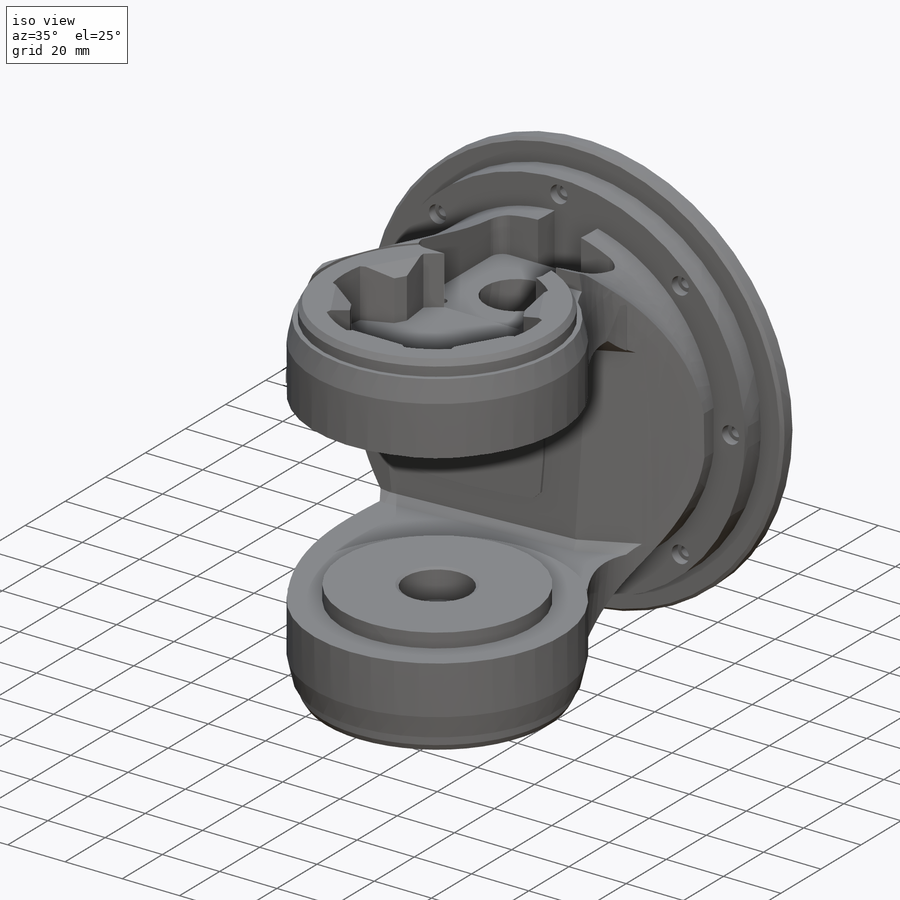
[diagram: iso view]
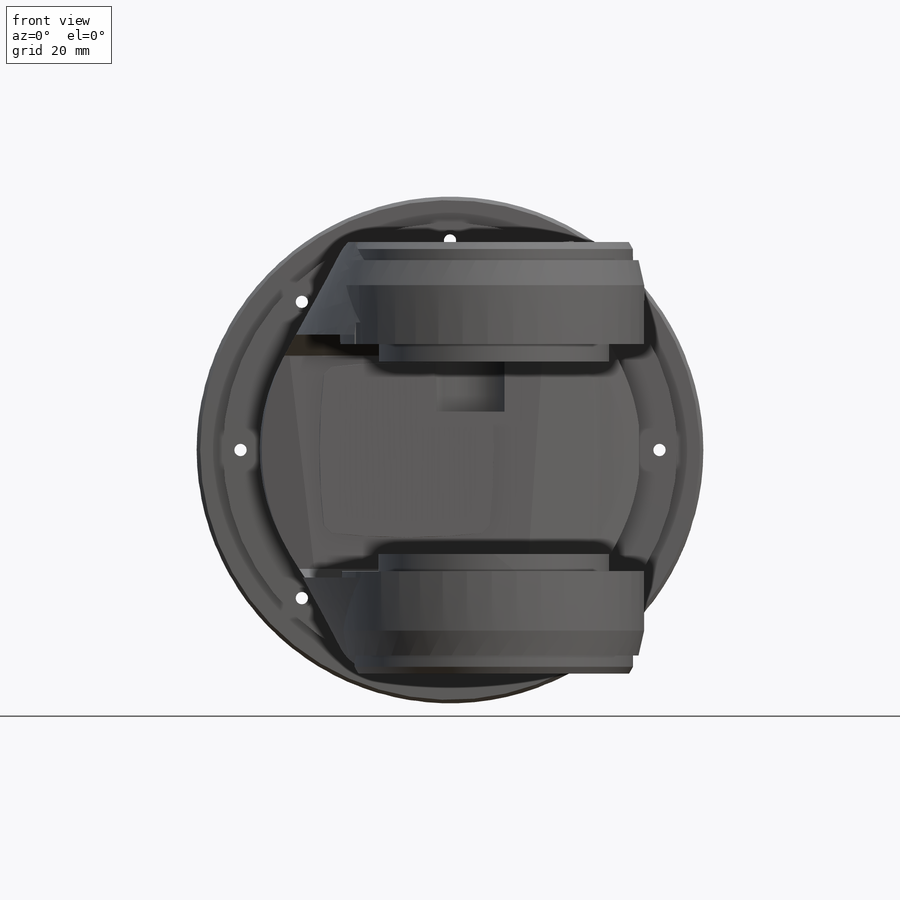
[diagram: front view]
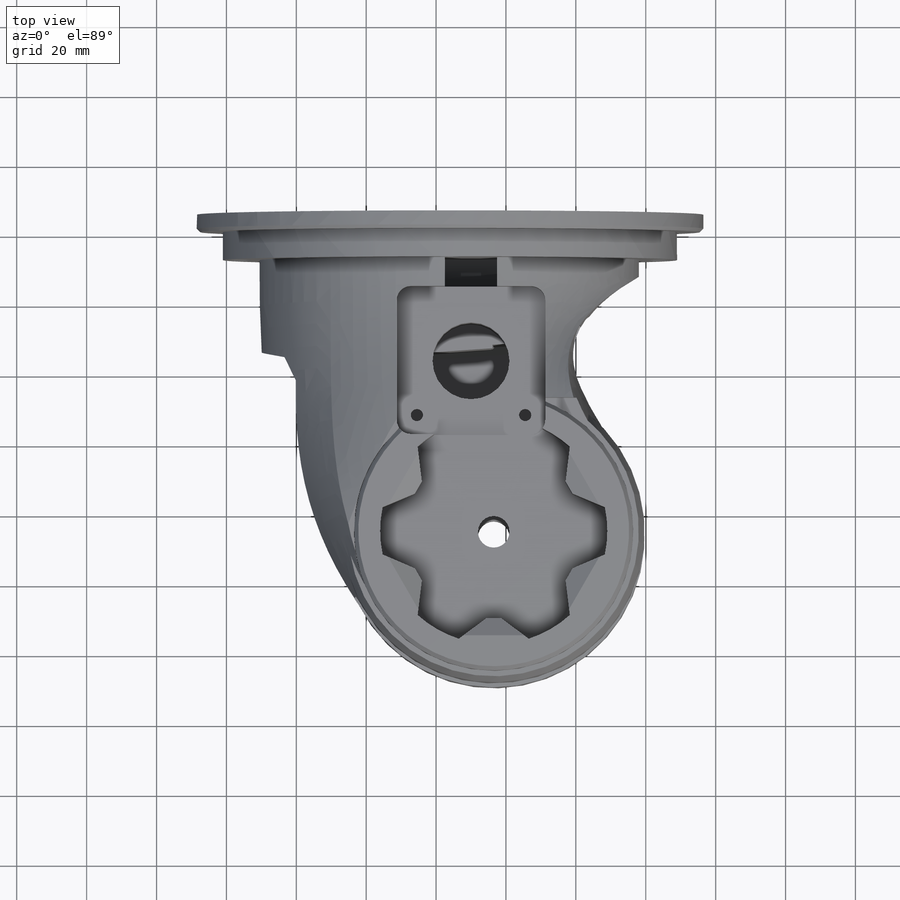
[diagram: top view]
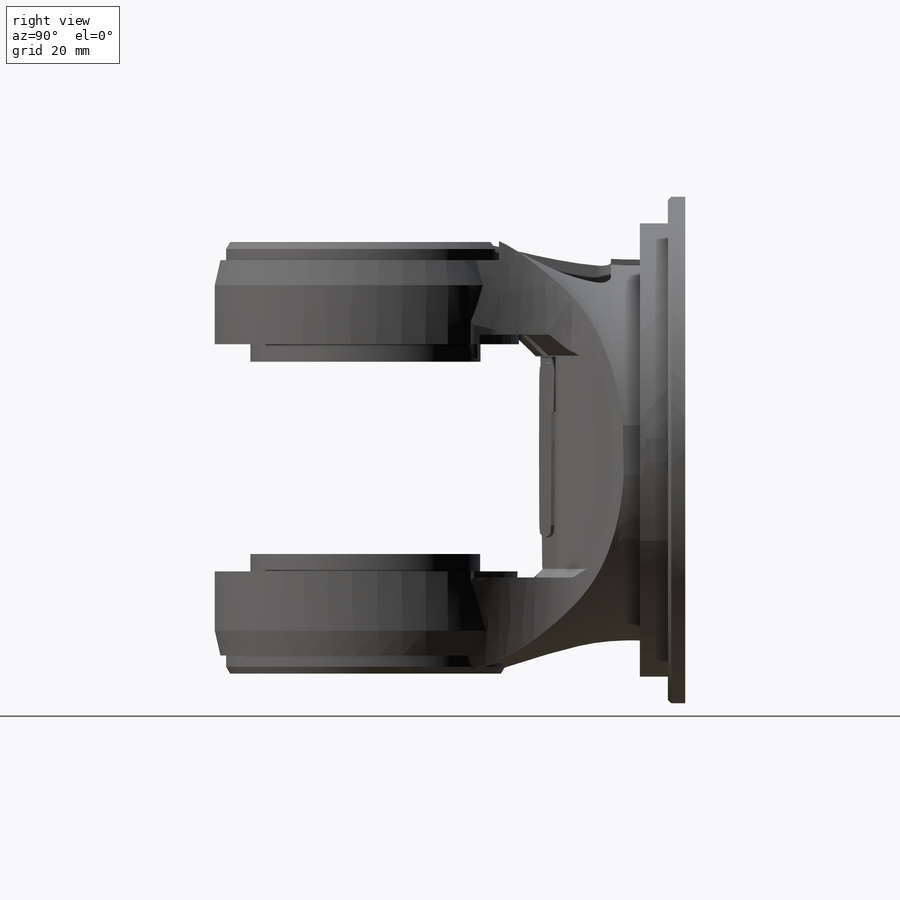
[diagram: right view]
SOLIDWORKS PART (.sldprt)
format: sldprt  version: not decoded by parser v0  size: 4,474,368 bytes
history: native  units: mm
features: sketch x34, cut_extrude x28, plane x10, chamfer x6, extrude x4, fillet x3, mirror x2, delete_body x2, material x1, cut_revolve x1, move_body x1, revolve x1 (+10 scaffold rows collapsed)
feature tree (103):
  scaffold x10  (default folders/planes/origin — collapsed)
  material  "Materiał <nieokreślony>"
  plane  "Płaszczyzna przednia"
  plane  "Płaszczyzna górna"
  plane  "Płaszczyzna prawa"
  sketch  "Szkic1"
  cut_extrude  "Wytnij-wyciągnięcie1"  Depth=10mm
  sketch  "Szkic2"  dims[c1.D4=~8.577769mm c1.D5=~0.461453mm c1.D10=~4.634352mm c1.D1=2.7mm c1.D2=3.2mm c2.D4=~3.31882mm c2.D6=~0.313752mm c2.D7=2.5mm c2.D8=~0.416444mm c2.D9=2.65mm c2.D3=70.0]
  extrude  "Dodanie-wyciągnięcie1"  Depth=5mm
  sketch  "Szkic3"  dims[D1=130.0mm]
  extrude  "Dodanie-wyciągnięcie2"  [1 undecoded]
  sketch  "Szkic4"
  cut_extrude  "Wytnij-wyciągnięcie2"  Depth=10mm
  plane  "Płaszczyzna4"
  sketch  "Szkic5"  dims[c1.D1=8.5mm c1.D2=1.7mm c1.D3=~6.697462mm c2.D3=90.0deg c3.D3=51.0mm c3.D2=1.7mm]
  cut_revolve  "Wycięcie-obrót1"  Angle=360deg
  sketch  "Szkic7"
  cut_extrude  "Wytnij-wyciągnięcie4"  Depth=10mm
  plane  "Płaszczyzna5"  Offset=70mm
  plane  "Płaszczyzna7"
  sketch  "Szkic10"  dims[D2=4.0mm D1=42.5mm D3=21.3mm D4=6.0mm]
  cut_extrude  "Wytnij-wyciągnięcie6"  Depth=28mm
  sketch  "Szkic11"  dims[D1=22.2mm]
  cut_extrude  "Wytnij-wyciągnięcie7"  [1 undecoded]
  sketch  "Szkic13"
  cut_extrude  "Wytnij-wyciągnięcie8"  Depth=10mm
  chamfer  "Sfazowanie1"  Distance=1mm Angle=30deg
  sketch  "Szkic16"
  cut_extrude  "Wytnij-wyciągnięcie11"  Depth=15mm
  sketch  "Szkic18"  dims[D1=3.5mm D2=8.0]
  cut_extrude  "Wytnij-wyciągnięcie12"  Depth=15mm
  sketch  "Szkic19"  dims[D1=6.0mm D2=8.0]
  cut_extrude  "Wytnij-wyciągnięcie13"  Depth=3mm
  sketch  "Szkic20"  dims[D1=5.6mm D2=8.0]
  cut_extrude  "Wytnij-wyciągnięcie14"  Depth=3.5mm
  plane  "Płaszczyzna6"  Offset=5mm
  sketch  "Szkic21"  dims[D1=7.5mm]
  extrude  "Dodanie-wyciągnięcie3"  [1 undecoded]
  chamfer  "Sfazowanie2"  Distance=1mm Angle=45deg
  sketch  "Szkic22"
  cut_extrude  "Wytnij-wyciągnięcie15"  Depth=10mm
  sketch  "Szkic23"  dims[D1=9.0mm]
  cut_extrude  "Wytnij-wyciągnięcie16"  Depth=4mm
  chamfer  "Sfazowanie3"  Distance=1mm Angle=45deg
  sketch  "Szkic24"  dims[D2=3.5mm D1=31.0mm D3=31.0mm]
  cut_extrude  "Wytnij-wyciągnięcie17"  Depth=30mm
  sketch  "Szkic25"  dims[D1=6.0mm]
  cut_extrude  "Wytnij-wyciągnięcie18"  Depth=4mm
  sketch  "Szkic26"  dims[D1=0.8mm]
  cut_extrude  "Wytnij-wyciągnięcie19"  [1 undecoded]
  sketch  "Szkic27"  dims[D1=22.0mm]
  cut_extrude  "Wytnij-wyciągnięcie20"  Depth=30mm
  sketch  "Szkic28"  dims[D1=15.0mm]
  cut_extrude  "Wytnij-wyciągnięcie21"  Depth=70mm
  sketch  "Szkic29"
  cut_extrude  "Wytnij-wyciągnięcie24"  [1 undecoded]
  chamfer  "Sfazowanie4"  Distance=10mm Angle=30deg
  fillet  "Zaokrąglenie1"  Radius=10mm
  fillet  "Zaokrąglenie2"  Radius=10mm
  fillet  "Zaokrąglenie3"  Radius=10mm
  sketch  "Szkic30"  dims[D1=3.5mm D2=31.0mm D3=31.0mm]
  cut_extrude  "Wytnij-wyciągnięcie25"  Depth=30mm
  sketch  "Szkic31"  dims[D1=6.0mm]
  cut_extrude  "Wytnij-wyciągnięcie26"  Depth=4mm
  sketch  "Szkic8"
  cut_extrude  "Wytnij-wyciągnięcie5"  [1 undecoded]
  move_body  "Obiekt-Przenieś/Kopiuj1"
  plane  "Płaszczyzna8"  Offset=63mm
  sketch  "Szkic32"
  cut_extrude  "Wytnij-wyciągnięcie27"  Depth=10mm
  sketch  "Szkic33"  dims[D1=80.0mm]
  cut_extrude  "Wytnij-wyciągnięcie28"  Depth=17mm
  sketch  "Szkic36"
  cut_extrude  "Wytnij-wyciągnięcie32"  Depth=40mm
  sketch  "Szkic34"  dims[c1.D1=65.0mm c1.D6=79.8mm c1.D3=4.0mm c1.D4=10.0mm c1.D5=20.0mm c2.D4=15.0mm c2.D2=6.0]
  extrude  "Dodanie-wyciągnięcie5"  Depth=17mm
  chamfer  "Sfazowanie5"  Distance=5mm Angle=30deg
  sketch  "Szkic37"
  cut_extrude  "Wytnij-wyciągnięcie33"  Depth=40mm
  plane  "Płaszczyzna9"
  sketch  "Szkic39"  dims[D1=80.0mm]
  revolve  "Obrót1"  Angle=120deg
  chamfer  "Sfazowanie6"  Distance=2mm Angle=30deg
  mirror  "Lustro1"
  mirror  "Lustro2"
  sketch  "Szkic40"  dims[D1=0.0mm]
  cut_extrude  "Wytnij-wyciągnięcie34"  [1 undecoded]
  delete_body  "Obiekt-Usuń1"
  sketch  "Szkic41"  dims[D1=0.0mm]
  cut_extrude  "Wytnij-wyciągnięcie35"  Depth=10mm
  delete_body  "Obiekt-Usuń2"
  plane  "Płaszczyzna10"
  sketch  "Szkic42"
  cut_extrude  "Wytnij-wyciągnięcie36"  Depth=20mm
decode coverage: 58 of 82 modeling features carry decoded parameters
note: ~ marks probable driven/reference dimensions
note: 7 parameter values undecoded
summary: no parameter record found for 7 features
note: suppression state not decoded; provenance and decode notes live in map.json
